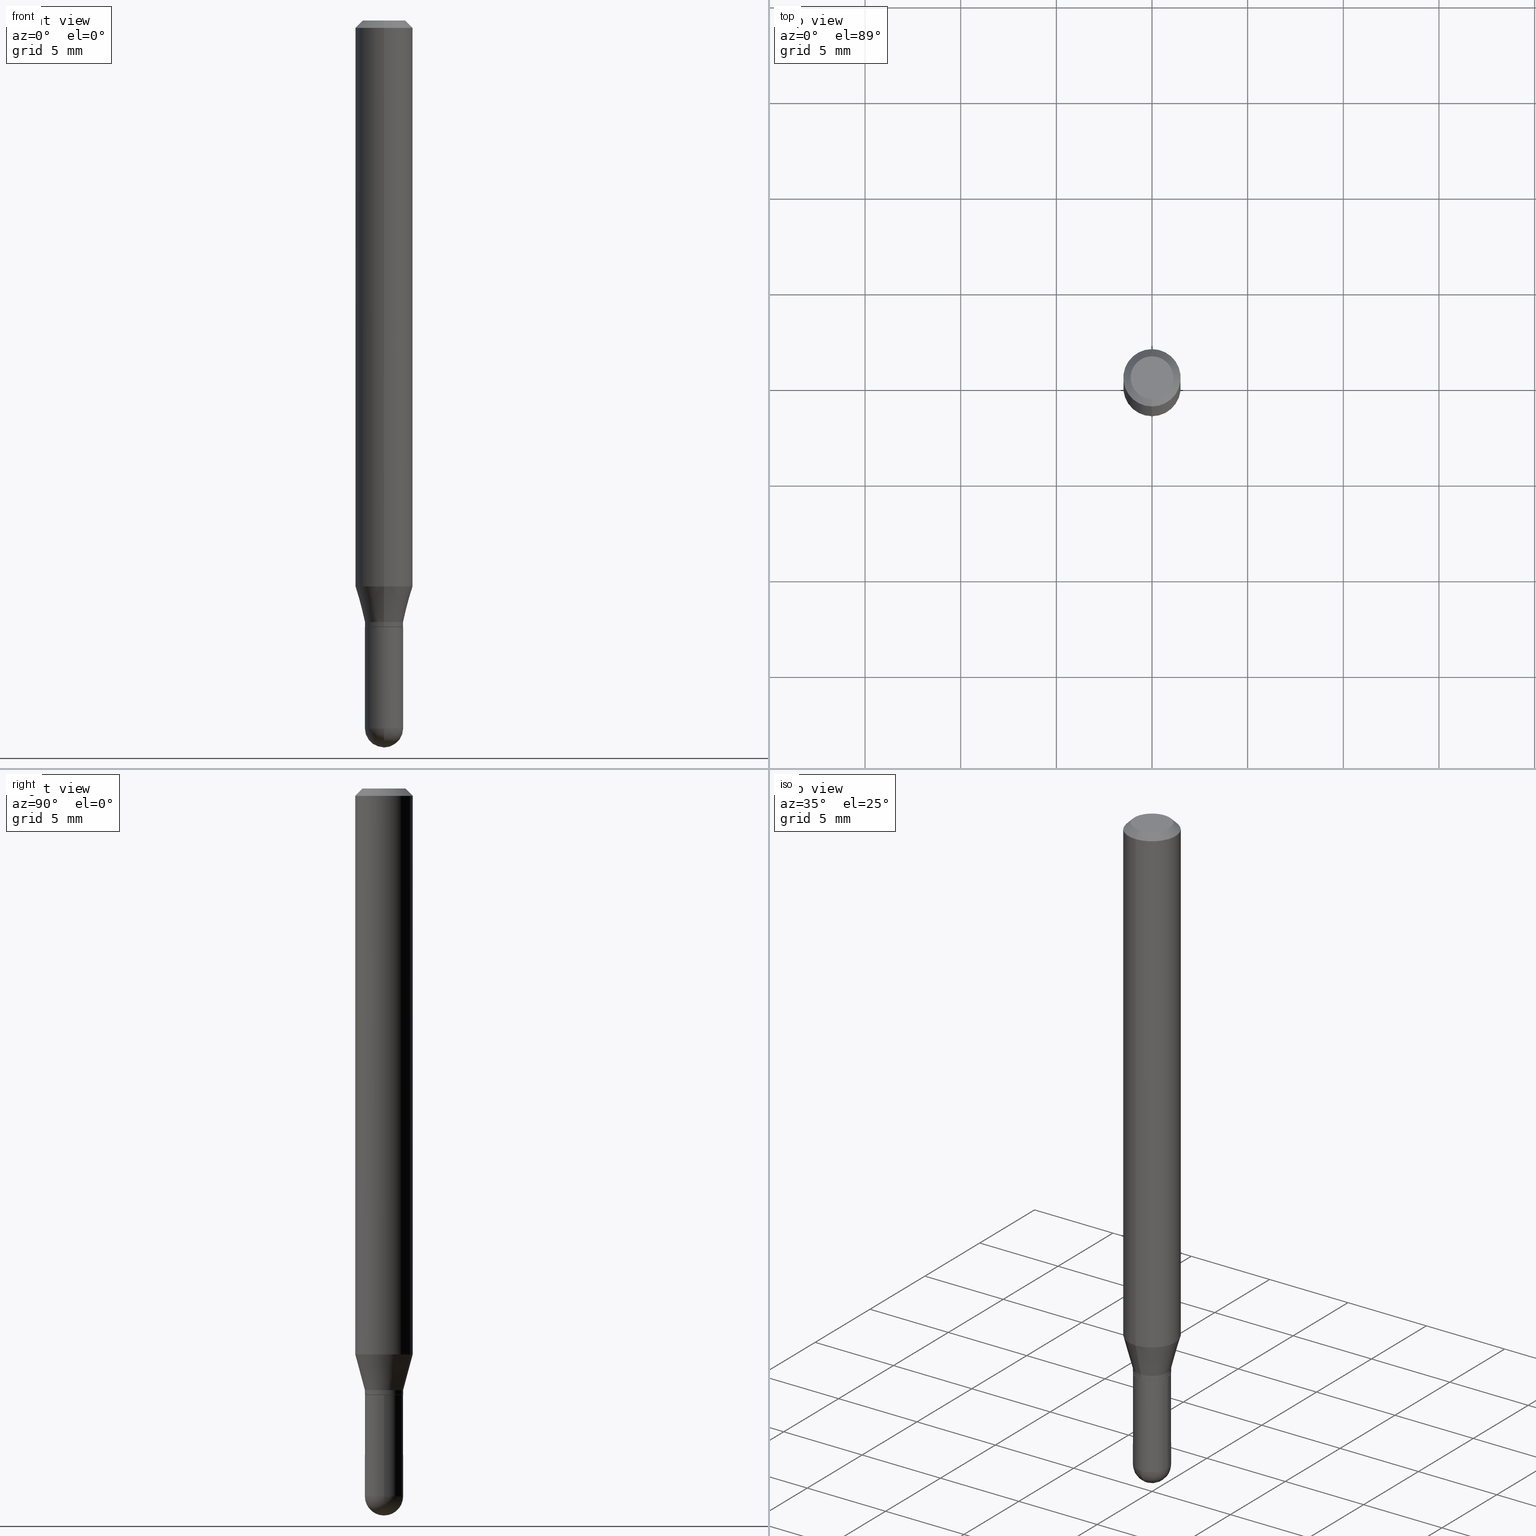
[diagram: canonical four-view strip — front | top / right | iso, engineering-drawing reading convention]
A machine part, canonical four-view strip (front | top / right | iso — engineering-drawing reading convention). The complete STEP part file that produces these views, byte-faithful:
ISO-10303-21;
HEADER;
FILE_DESCRIPTION (( 'STEP AP203' ),
    '1' );
FILE_NAME ('48865.STEP',
    '2024-03-08T13:31:53',
    ( '' ),
    ( '' ),
    'SwSTEP 2.0',
    'SolidWorks 2023',
    '' );
FILE_SCHEMA (( 'CONFIG_CONTROL_DESIGN' ));
ENDSEC;

DATA;
#1 =( GEOMETRIC_REPRESENTATION_CONTEXT ( 3 ) GLOBAL_UNCERTAINTY_ASSIGNED_CONTEXT ( ( #200 ) ) GLOBAL_UNIT_ASSIGNED_CONTEXT ( ( #266, #496, #423 ) ) REPRESENTATION_CONTEXT ( 'NONE', 'WORKASPACE' ) );
#2 = EDGE_CURVE ( 'NONE', #325, #75, #278, .T. ) ;
#3 = ORIENTED_EDGE ( 'NONE', *, *, #48, .F. ) ;
#4 = DIRECTION ( 'NONE',  ( -6.982962677686265133E-15, -1.000000000000000000, 0.000000000000000000 ) ) ;
#5 = LINE ( 'NONE', #410, #94 ) ;
#6 = AXIS2_PLACEMENT_3D ( 'NONE', #359, #203, #4 ) ;
#7 = AXIS2_PLACEMENT_3D ( 'NONE', #338, #336, #341 ) ;
#8 = AXIS2_PLACEMENT_3D ( 'NONE', #90, #417, #383 ) ;
#9 = DIRECTION ( 'NONE',  ( 1.000000000000000000, -6.982962677686266711E-15, 4.883557194083112901E-29 ) ) ;
#10 = DIRECTION ( 'NONE',  ( -2.445991447333329279E-29, 3.490732886972046653E-15, 1.000000000000000000 ) ) ;
#11 = CARTESIAN_POINT ( 'NONE',  ( 0.000000000000000000, 0.000000000000000000, 0.000000000000000000 ) ) ;
#12 = AXIS2_PLACEMENT_3D ( 'NONE', #343, #487, #350 ) ;
#13 = CARTESIAN_POINT ( 'NONE',  ( 0.000000000000000000, 0.000000000000000000, 0.000000000000000000 ) ) ;
#14 = CC_DESIGN_SECURITY_CLASSIFICATION ( #190, ( #31 ) ) ;
#15 = DIRECTION ( 'NONE',  ( 1.000000000000000000, -6.982962677686266711E-15, 4.876176775795936353E-29 ) ) ;
#16 = EDGE_CURVE ( 'NONE', #344, #28, #250, .T. ) ;
#17 = ORIENTED_EDGE ( 'NONE', *, *, #62, .T. ) ;
#18 = FACE_OUTER_BOUND ( 'NONE', #112, .T. ) ;
#19 = CARTESIAN_POINT ( 'NONE',  ( -4.123439461173737369E-16, -0.05905000000000006771, -0.01500000000000025618 ) ) ;
#20 = ORIENTED_EDGE ( 'NONE', *, *, #29, .F. ) ;
#21 = DIRECTION ( 'NONE',  ( 2.445991447333329279E-29, -3.490732886972046653E-15, -1.000000000000000000 ) ) ;
#22 = CONICAL_SURFACE ( 'NONE', #134, 0.03934999999999992670, 0.2617993877991502960 ) ;
#23 = EDGE_LOOP ( 'NONE', ( #436, #416 ) ) ;
#24 = AXIS2_PLACEMENT_3D ( 'NONE', #346, #449, #185 ) ;
#25 = FACE_OUTER_BOUND ( 'NONE', #173, .T. ) ;
#26 = ORIENTED_EDGE ( 'NONE', *, *, #239, .T. ) ;
#27 = CARTESIAN_POINT ( 'NONE',  ( 0.03935000000000000303, -2.747795813669546211E-16, 1.918775561275701074E-30 ) ) ;
#28 = VERTEX_POINT ( 'NONE', #288 ) ;
#29 = EDGE_CURVE ( 'NONE', #430, #311, #178, .T. ) ;
#30 = CARTESIAN_POINT ( 'NONE',  ( 4.195754854663679906E-16, 0.05904999999999997057, -0.01500000000000067078 ) ) ;
#31 = PRODUCT_DEFINITION_FORMATION_WITH_SPECIFIED_SOURCE ( 'ANY', '', #271, .NOT_KNOWN. ) ;
#32 = COORDINATED_UNIVERSAL_TIME_OFFSET ( 5, 0, .BEHIND. ) ;
#33 = VERTEX_POINT ( 'NONE', #30 ) ;
#34 = EDGE_CURVE ( 'NONE', #434, #473, #167, .T. ) ;
#35 = CARTESIAN_POINT ( 'NONE',  ( -0.03935000000000000303, 2.795985665215994447E-16, -1.935600958015305291E-30 ) ) ;
#36 = ORIENTED_EDGE ( 'NONE', *, *, #480, .F. ) ;
#37 = ADVANCED_FACE ( 'NONE', ( #319 ), #457, .T. ) ;
#38 = COORDINATED_UNIVERSAL_TIME_OFFSET ( 5, 0, .BEHIND. ) ;
#39 = DIRECTION ( 'NONE',  ( 2.438088387897960049E-29, -3.491481338843145188E-15, -1.000000000000000000 ) ) ;
#40 = VERTEX_POINT ( 'NONE', #478 ) ;
#41 = AXIS2_PLACEMENT_3D ( 'NONE', #411, #342, #260 ) ;
#42 = ORIENTED_EDGE ( 'NONE', *, *, #365, .T. ) ;
#43 = DIRECTION ( 'NONE',  ( -6.982962677686265133E-15, -1.000000000000000000, 6.942434545525459712E-15 ) ) ;
#44 = CARTESIAN_POINT ( 'NONE',  ( -2.747795813669238062E-16, -0.03935000000000424270, -1.238099999999999534 ) ) ;
#45 = ADVANCED_FACE ( 'NONE', ( #409 ), #52, .F. ) ;
#46 = AXIS2_PLACEMENT_3D ( 'NONE', #131, #500, #96 ) ;
#47 = DIRECTION ( 'NONE',  ( -6.982962677686265133E-15, -1.000000000000000000, 3.490732886972045864E-15 ) ) ;
#48 = EDGE_CURVE ( 'NONE', #222, #231, #5, .T. ) ;
#49 = DATE_AND_TIME ( #252, #259 ) ;
#50 = CYLINDRICAL_SURFACE ( 'NONE', #73, 0.05905000000000000526 ) ;
#51 = CC_DESIGN_PERSON_AND_ORGANIZATION_ASSIGNMENT ( #110, #275, ( #271 ) ) ;
#52 = PLANE ( 'NONE',  #504 ) ;
#53 = CARTESIAN_POINT ( 'NONE',  ( 3.668987171000107582E-31, -5.236099330458231942E-17, -0.01500000000000046262 ) ) ;
#54 = CONICAL_SURFACE ( 'NONE', #244, 0.05905000000000001914, 0.7853981633974485010 ) ;
#55 = DIRECTION ( 'NONE',  ( 6.982962677686265922E-15, 1.000000000000000000, -3.505890868245044514E-15 ) ) ;
#56 = CIRCLE ( 'NONE', #226, 0.03935000000000000303 ) ;
#57 = CARTESIAN_POINT ( 'NONE',  ( -4.123439461173452886E-16, -0.05905000000000402982, -1.164578599090892785 ) ) ;
#58 = ADVANCED_FACE ( 'NONE', ( #123 ), #50, .T. ) ;
#59 = CARTESIAN_POINT ( 'NONE',  ( 4.195754854663677934E-16, 0.05904999999999596683, -1.164578599090893229 ) ) ;
#60 = ORIENTED_EDGE ( 'NONE', *, *, #2, .T. ) ;
#61 = DIRECTION ( 'NONE',  ( 6.982962677686265922E-15, 1.000000000000000000, -3.505890868245044514E-15 ) ) ;
#62 = EDGE_CURVE ( 'NONE', #75, #28, #293, .T. ) ;
#63 = CARTESIAN_POINT ( 'NONE',  ( 0.03935000000000000303, -4.996746231051896791E-15, -1.456749999999999989 ) ) ;
#64 = AXIS2_PLACEMENT_3D ( 'NONE', #285, #469, #192 ) ;
#65 = ORIENTED_EDGE ( 'NONE', *, *, #332, .T. ) ;
#66 = APPROVAL ( #211, 'UNSPECIFIED' ) ;
#67 = ADVANCED_FACE ( 'NONE', ( #442 ), #225, .T. ) ;
#68 = LINE ( 'NONE', #232, #431 ) ;
#69 = ORIENTED_EDGE ( 'NONE', *, *, #255, .T. ) ;
#70 = COORDINATED_UNIVERSAL_TIME_OFFSET ( 5, 0, .BEHIND. ) ;
#71 = SPHERICAL_SURFACE ( 'NONE', #505, 0.03934999999999998221 ) ;
#72 = DIRECTION ( 'NONE',  ( -2.445991447333329279E-29, 3.490732886972046653E-15, 1.000000000000000000 ) ) ;
#73 = AXIS2_PLACEMENT_3D ( 'NONE', #13, #89, #300 ) ;
#74 = CARTESIAN_POINT ( 'NONE',  ( 2.747795813669850908E-16, 0.03934999999999564541, -1.248100000000000209 ) ) ;
#75 = VERTEX_POINT ( 'NONE', #129 ) ;
#76 = ORIENTED_EDGE ( 'NONE', *, *, #332, .F. ) ;
#77 = EDGE_CURVE ( 'NONE', #473, #398, #339, .T. ) ;
#78 = DIRECTION ( 'NONE',  ( -2.445991447333329279E-29, 3.490732886972046653E-15, 1.000000000000000000 ) ) ;
#79 = ORIENTED_EDGE ( 'NONE', *, *, #143, .T. ) ;
#80 = CIRCLE ( 'NONE', #289, 0.05904999999999999832 ) ;
#81 = ORGANIZATION ( 'UNSPECIFIED', 'UNSPECIFIED', '' ) ;
#82 = ORIENTED_EDGE ( 'NONE', *, *, #453, .F. ) ;
#83 = CARTESIAN_POINT ( 'NONE',  ( -4.123439461173740327E-16, -0.05905000000000000526, 2.061277769756993909E-16 ) ) ;
#84 = PERSON_AND_ORGANIZATION ( #448, #81 ) ;
#85 = CARTESIAN_POINT ( 'NONE',  ( 3.559071604062276693E-29, -5.091034425514398258E-15, -1.456749999999999989 ) ) ;
#86 = CIRCLE ( 'NONE', #467, 0.03934999999999998221 ) ;
#87 = APPROVAL_DATE_TIME ( #404, #66 ) ;
#88 = DIRECTION ( 'NONE',  ( -6.982962677686265133E-15, -1.000000000000000000, 0.000000000000000000 ) ) ;
#89 = DIRECTION ( 'NONE',  ( -2.445991447333329279E-29, 3.490732886972046653E-15, 1.000000000000000000 ) ) ;
#90 = CARTESIAN_POINT ( 'NONE',  ( 3.562436683410197746E-29, -5.086215440359752990E-15, -1.456749999999999989 ) ) ;
#91 = APPROVAL_ROLE ( '' ) ;
#92 = APPROVAL ( #234, 'UNSPECIFIED' ) ;
#93 = APPLICATION_PROTOCOL_DEFINITION ( 'international standard', 'config_control_design', 1994, #149 ) ;
#94 = VECTOR ( 'NONE', #475, 39.37007874015748143 ) ;
#95 = VECTOR ( 'NONE', #497, 39.37007874015748143 ) ;
#96 = DIRECTION ( 'NONE',  ( 1.000000000000000000, -6.982962677686269077E-15, 0.000000000000000000 ) ) ;
#97 = ORIENTED_EDGE ( 'NONE', *, *, #261, .T. ) ;
#98 = LINE ( 'NONE', #263, #114 ) ;
#99 = ADVANCED_FACE ( 'NONE', ( #481 ), #253, .F. ) ;
#100 = CYLINDRICAL_SURFACE ( 'NONE', #331, 0.03935000000000000303 ) ;
#101 = EDGE_CURVE ( 'NONE', #102, #470, #421, .T. ) ;
#102 = VERTEX_POINT ( 'NONE', #44 ) ;
#103 = CARTESIAN_POINT ( 'NONE',  ( 3.052841925416728351E-29, -4.356783716229811953E-15, -1.248099999999999987 ) ) ;
#104 = CIRCLE ( 'NONE', #159, 0.04405000000000000582 ) ;
#105 = EDGE_LOOP ( 'NONE', ( #141, #193 ) ) ;
#106 = CARTESIAN_POINT ( 'NONE',  ( 3.028382010943394817E-29, -4.321876387360090974E-15, -1.238099999999999756 ) ) ;
#107 = VERTEX_POINT ( 'NONE', #213 ) ;
#108 = DIRECTION ( 'NONE',  ( -6.982962677686265133E-15, -1.000000000000000000, 3.490732886972045864E-15 ) ) ;
#109 = CARTESIAN_POINT ( 'NONE',  ( 2.848549293123754219E-29, -4.065232815310413885E-15, -1.164578599090893007 ) ) ;
#110 = PERSON_AND_ORGANIZATION ( #448, #81 ) ;
#111 = FACE_OUTER_BOUND ( 'NONE', #281, .T. ) ;
#112 = EDGE_LOOP ( 'NONE', ( #60, #17, #347, #418 ) ) ;
#113 = AXIS2_PLACEMENT_3D ( 'NONE', #11, #204, #445 ) ;
#114 = VECTOR ( 'NONE', #224, 39.37007874015748143 ) ;
#115 = APPROVAL_ROLE ( '' ) ;
#116 = DIRECTION ( 'NONE',  ( -6.982962677686265133E-15, -1.000000000000000000, 0.000000000000000000 ) ) ;
#117 = ORIENTED_EDGE ( 'NONE', *, *, #156, .F. ) ;
#118 = EDGE_LOOP ( 'NONE', ( #195, #501, #379, #186, #348 ) ) ;
#119 = DIRECTION ( 'NONE',  ( -6.982962677686265133E-15, -1.000000000000000000, 6.942434545525459712E-15 ) ) ;
#120 = LOCAL_TIME ( 8, 31, 53.00000000000000000, #32 ) ;
#121 = PERSON_AND_ORGANIZATION ( #448, #81 ) ;
#122 = CARTESIAN_POINT ( 'NONE',  ( -2.712881000280808977E-16, -0.03885000000000435327, -1.248099999999999987 ) ) ;
#123 = FACE_OUTER_BOUND ( 'NONE', #464, .T. ) ;
#124 = MANIFOLD_SOLID_BREP ( 'Body-Move/Copy2[1]', #146 ) ;
#125 = ADVANCED_FACE ( 'NONE', ( #366 ), #371, .T. ) ;
#126 = CYLINDRICAL_SURFACE ( 'NONE', #140, 0.05905000000000000526 ) ;
#127 = DIRECTION ( 'NONE',  ( -2.445468806185136597E-29, 3.491481338843145583E-15, 1.000000000000000000 ) ) ;
#128 = MANIFOLD_SOLID_BREP ( 'Body-Move/Copy2[2]', #491 ) ;
#129 = CARTESIAN_POINT ( 'NONE',  ( 2.778222096822293666E-16, 0.03884999999999564496, -1.248099999999999987 ) ) ;
#130 = LENGTH_MEASURE_WITH_UNIT ( LENGTH_MEASURE( 0.02539999999999999897 ), #229 );
#131 = CARTESIAN_POINT ( 'NONE',  ( 3.052189616999668885E-29, -4.357717859010129969E-15, -1.248099999999999987 ) ) ;
#132 = VERTEX_POINT ( 'NONE', #364 ) ;
#133 = CARTESIAN_POINT ( 'NONE',  ( -2.747795813669540294E-16, -0.03934999999999992670, 1.373603391023497678E-16 ) ) ;
#134 = AXIS2_PLACEMENT_3D ( 'NONE', #135, #394, #321 ) ;
#135 = CARTESIAN_POINT ( 'NONE',  ( 3.028382010943394817E-29, -4.321876387360090974E-15, -1.238099999999999756 ) ) ;
#136 = ORIENTED_EDGE ( 'NONE', *, *, #377, .F. ) ;
#137 = DIRECTION ( 'NONE',  ( -2.445991447333329279E-29, 3.490732886972046653E-15, 1.000000000000000000 ) ) ;
#138 = ADVANCED_FACE ( 'NONE', ( #254 ), #166, .T. ) ;
#139 = ORIENTED_EDGE ( 'NONE', *, *, #29, .T. ) ;
#140 = AXIS2_PLACEMENT_3D ( 'NONE', #296, #483, #291 ) ;
#141 = ORIENTED_EDGE ( 'NONE', *, *, #462, .T. ) ;
#142 = VECTOR ( 'NONE', #375, 39.37007874015748143 ) ;
#143 = EDGE_CURVE ( 'NONE', #512, #222, #104, .T. ) ;
#144 = DIRECTION ( 'NONE',  ( -2.445991447333329279E-29, 3.490732886972046653E-15, 1.000000000000000000 ) ) ;
#145 = ORIENTED_EDGE ( 'NONE', *, *, #158, .T. ) ;
#146 = CLOSED_SHELL ( 'NONE', ( #373, #138, #370, #337, #437 ) ) ;
#147 = ORIENTED_EDGE ( 'NONE', *, *, #495, .F. ) ;
#148 = VECTOR ( 'NONE', #157, 39.37007874015748143 ) ;
#149 = APPLICATION_CONTEXT ( 'configuration controlled 3d designs of mechanical parts and assemblies' ) ;
#150 = DATE_AND_TIME ( #507, #305 ) ;
#151 = DIRECTION ( 'NONE',  ( -2.445991447333329279E-29, 3.490732886972046653E-15, 1.000000000000000000 ) ) ;
#152 = ORIENTED_EDGE ( 'NONE', *, *, #77, .F. ) ;
#153 = CARTESIAN_POINT ( 'NONE',  ( 3.559071604062276693E-29, -5.091034425514398258E-15, -1.456749999999999989 ) ) ;
#154 = CC_DESIGN_PERSON_AND_ORGANIZATION_ASSIGNMENT ( #84, #335, ( #190 ) ) ;
#155 = CARTESIAN_POINT ( 'NONE',  ( 3.051618929693061478E-29, -4.355038349786326141E-15, -1.247600000000000042 ) ) ;
#156 = EDGE_CURVE ( 'NONE', #231, #33, #168, .T. ) ;
#157 = DIRECTION ( 'NONE',  ( -4.937700262164674260E-15, -0.7071067811865632269, 0.7071067811865319186 ) ) ;
#158 = EDGE_CURVE ( 'NONE', #325, #344, #485, .T. ) ;
#159 = AXIS2_PLACEMENT_3D ( 'NONE', #249, #10, #47 ) ;
#160 = LOCAL_TIME ( 8, 31, 53.00000000000000000, #70 ) ;
#161 = CALENDAR_DATE ( 2024, 8, 3 ) ;
#162 = DIRECTION ( 'NONE',  ( 6.982962677686265922E-15, 1.000000000000000000, -3.490732886972046653E-15 ) ) ;
#163 = PRODUCT_DEFINITION ( 'UNKNOWN', '', #31, #230 ) ;
#164 = DIRECTION ( 'NONE',  ( -1.807323732225330928E-15, -0.2588190451025182970, 0.9659258262890689783 ) ) ;
#165 = CARTESIAN_POINT ( 'NONE',  ( 3.075995059520800222E-16, 0.04405000000000000582, -3.855612639484373857E-16 ) ) ;
#166 = SPHERICAL_SURFACE ( 'NONE', #258, 0.03934999999999998221 ) ;
#167 = CIRCLE ( 'NONE', #242, 0.03935000000000000303 ) ;
#168 = CIRCLE ( 'NONE', #7, 0.05905000000000001914 ) ;
#169 = APPLICATION_CONTEXT ( 'configuration controlled 3d designs of mechanical parts and assemblies' ) ;
#170 = DIRECTION ( 'NONE',  ( -6.982962677686265133E-15, -1.000000000000000000, 3.490732886972046258E-15 ) ) ;
#171 = DIRECTION ( 'NONE',  ( -6.982962677686266711E-15, -1.000000000000000000, 6.942434545525449456E-15 ) ) ;
#172 = CARTESIAN_POINT ( 'NONE',  ( 3.051618929693061478E-29, -4.355038349786326141E-15, -1.247600000000000042 ) ) ;
#173 = EDGE_LOOP ( 'NONE', ( #3, #425, #357, #65 ) ) ;
#174 = DIRECTION ( 'NONE',  ( -6.982962677686265133E-15, -1.000000000000000000, 0.000000000000000000 ) ) ;
#175 = FACE_OUTER_BOUND ( 'NONE', #420, .T. ) ;
#176 = ORIENTED_EDGE ( 'NONE', *, *, #453, .T. ) ;
#177 = FACE_OUTER_BOUND ( 'NONE', #233, .T. ) ;
#178 = CIRCLE ( 'NONE', #380, 0.05904999999999999832 ) ;
#179 = CIRCLE ( 'NONE', #330, 0.04405000000000000582 ) ;
#180 = DIRECTION ( 'NONE',  ( -2.445991447333329279E-29, 3.490732886972046653E-15, 1.000000000000000000 ) ) ;
#181 = APPROVAL_PERSON_ORGANIZATION ( #257, #92, #374 ) ;
#182 = ORIENTED_EDGE ( 'NONE', *, *, #422, .F. ) ;
#183 = DIRECTION ( 'NONE',  ( 2.445991447333329279E-29, -3.490732886972046653E-15, -1.000000000000000000 ) ) ;
#184 = ORIENTED_EDGE ( 'NONE', *, *, #219, .F. ) ;
#185 = DIRECTION ( 'NONE',  ( 7.105427357601000281E-15, 1.000000000000000000, 0.000000000000000000 ) ) ;
#186 = ORIENTED_EDGE ( 'NONE', *, *, #255, .F. ) ;
#187 = APPLICATION_PROTOCOL_DEFINITION ( 'international standard', 'config_control_design', 1994, #169 ) ;
#188 = AXIS2_PLACEMENT_3D ( 'NONE', #201, #361, #463 ) ;
#189 = CARTESIAN_POINT ( 'NONE',  ( 3.562436683410197746E-29, -5.086215440359752990E-15, -1.456749999999999989 ) ) ;
#190 = SECURITY_CLASSIFICATION ( '', '', #477 ) ;
#191 = CALENDAR_DATE ( 2024, 8, 3 ) ;
#192 = DIRECTION ( 'NONE',  ( 1.000000000000000000, -6.982962677686266711E-15, 4.876176775795936353E-29 ) ) ;
#193 = ORIENTED_EDGE ( 'NONE', *, *, #304, .T. ) ;
#194 = FACE_OUTER_BOUND ( 'NONE', #118, .T. ) ;
#195 = ORIENTED_EDGE ( 'NONE', *, *, #495, .T. ) ;
#196 = PRODUCT_DEFINITION_SHAPE ( 'NONE', 'NONE',  #163 ) ;
#197 = EDGE_LOOP ( 'NONE', ( #36, #26, #176, #328 ) ) ;
#198 = CIRCLE ( 'NONE', #188, 0.05905000000000001914 ) ;
#199 = CC_DESIGN_DATE_AND_TIME_ASSIGNMENT ( #205, #307, ( #163 ) ) ;
#200 = UNCERTAINTY_MEASURE_WITH_UNIT (LENGTH_MEASURE( 1.000000000000000082E-05 ), #266, 'distance_accuracy_value', 'NONE');
#201 = CARTESIAN_POINT ( 'NONE',  ( 3.668987171000107582E-31, -5.236099330458231942E-17, -0.01500000000000046262 ) ) ;
#202 = ADVANCED_FACE ( 'NONE', ( #333 ), #126, .T. ) ;
#203 = DIRECTION ( 'NONE',  ( -2.445991447333329279E-29, 3.490732886972046653E-15, 1.000000000000000000 ) ) ;
#204 = DIRECTION ( 'NONE',  ( -2.445991447333329279E-29, 3.490732886972046653E-15, 1.000000000000000000 ) ) ;
#205 = DATE_AND_TIME ( #272, #160 ) ;
#206 = DIRECTION ( 'NONE',  ( -2.445991447333328999E-29, 3.490732886972046653E-15, 1.000000000000000000 ) ) ;
#207 = PRODUCT_RELATED_PRODUCT_CATEGORY ( 'detail', '', ( #271 ) ) ;
#208 = AXIS2_PLACEMENT_3D ( 'NONE', #447, #210, #88 ) ;
#209 = AXIS2_PLACEMENT_3D ( 'NONE', #103, #137, #174 ) ;
#210 = DIRECTION ( 'NONE',  ( -2.445991447333329279E-29, 3.490732886972046653E-15, 1.000000000000000000 ) ) ;
#211 = APPROVAL_STATUS ( 'not_yet_approved' ) ;
#212 = DATE_TIME_ROLE ( 'classification_date' ) ;
#213 = CARTESIAN_POINT ( 'NONE',  ( -0.03935000000000000303, -4.442368083163342479E-15, -1.248099999999999987 ) ) ;
#214 = CARTESIAN_POINT ( 'NONE',  ( 3.052841925416728351E-29, -4.356783716229811953E-15, -1.248099999999999987 ) ) ;
#215 = CIRCLE ( 'NONE', #235, 0.03934999999999992670 ) ;
#216 = APPROVAL_PERSON_ORGANIZATION ( #317, #66, #91 ) ;
#217 = CARTESIAN_POINT ( 'NONE',  ( 3.599717260347272986E-16, 0.04405000000000000582, -6.173557442257560111E-16 ) ) ;
#218 = CARTESIAN_POINT ( 'NONE',  ( 0.000000000000000000, 0.000000000000000000, 0.000000000000000000 ) ) ;
#219 = EDGE_CURVE ( 'NONE', #430, #231, #441, .T. ) ;
#220 = ORIENTED_EDGE ( 'NONE', *, *, #261, .F. ) ;
#221 = CARTESIAN_POINT ( 'NONE',  ( 0.000000000000000000, 0.000000000000000000, 0.000000000000000000 ) ) ;
#222 = VERTEX_POINT ( 'NONE', #378 ) ;
#223 = EDGE_CURVE ( 'NONE', #512, #33, #265, .T. ) ;
#224 = DIRECTION ( 'NONE',  ( 1.839019923739601104E-15, 0.2588190451025250693, 0.9659258262890670910 ) ) ;
#225 = CONICAL_SURFACE ( 'NONE', #208, 0.03885000000000000259, 0.7853981633974739252 ) ;
#226 = AXIS2_PLACEMENT_3D ( 'NONE', #349, #452, #486 ) ;
#227 = CARTESIAN_POINT ( 'NONE',  ( 3.653618261911701929E-29, -5.230833708775198744E-15, -1.496099999999999985 ) ) ;
#228 = ORIENTED_EDGE ( 'NONE', *, *, #48, .T. ) ;
#229 =( LENGTH_UNIT ( ) NAMED_UNIT ( * ) SI_UNIT ( $, .METRE. ) );
#230 = DESIGN_CONTEXT ( 'detailed design', #169, 'design' ) ;
#231 = VERTEX_POINT ( 'NONE', #19 ) ;
#232 = CARTESIAN_POINT ( 'NONE',  ( -2.747795813669238062E-16, -0.03935000000000424270, -1.238099999999999534 ) ) ;
#233 = EDGE_LOOP ( 'NONE', ( #429, #503, #391, #82 ) ) ;
#234 = APPROVAL_STATUS ( 'not_yet_approved' ) ;
#235 = AXIS2_PLACEMENT_3D ( 'NONE', #172, #180, #269 ) ;
#236 = DIRECTION ( 'NONE',  ( -6.982962677686265133E-15, -1.000000000000000000, 6.942434545525459712E-15 ) ) ;
#237 = PERSON_AND_ORGANIZATION ( #448, #81 ) ;
#238 = ORIENTED_EDGE ( 'NONE', *, *, #34, .F. ) ;
#239 = EDGE_CURVE ( 'NONE', #28, #344, #215, .T. ) ;
#240 = VERTEX_POINT ( 'NONE', #227 ) ;
#241 = PLANE ( 'NONE',  #367 ) ;
#242 = AXIS2_PLACEMENT_3D ( 'NONE', #189, #355, #509 ) ;
#243 = EDGE_LOOP ( 'NONE', ( #136, #376, #351, #69, #270 ) ) ;
#244 = AXIS2_PLACEMENT_3D ( 'NONE', #413, #183, #55 ) ;
#245 = CC_DESIGN_APPROVAL ( #390, ( #163 ) ) ;
#246 = DIRECTION ( 'NONE',  ( 2.445991447333328999E-29, -3.490732886972046653E-15, -1.000000000000000000 ) ) ;
#247 = PERSON_AND_ORGANIZATION_ROLE ( 'design_supplier' ) ;
#248 = DIRECTION ( 'NONE',  ( -2.445991447333329279E-29, 3.490732886972046653E-15, 1.000000000000000000 ) ) ;
#249 = CARTESIAN_POINT ( 'NONE',  ( 1.133934632594791413E-44, -1.618265230645259765E-30, -4.635889605546374482E-16 ) ) ;
#250 = CIRCLE ( 'NONE', #405, 0.03934999999999992670 ) ;
#251 = LOCAL_TIME ( 8, 31, 53.00000000000000000, #294 ) ;
#252 = CALENDAR_DATE ( 2024, 8, 3 ) ;
#253 = PLANE ( 'NONE',  #360 ) ;
#254 = FACE_OUTER_BOUND ( 'NONE', #262, .T. ) ;
#255 = EDGE_CURVE ( 'NONE', #473, #40, #424, .T. ) ;
#256 = FACE_OUTER_BOUND ( 'NONE', #243, .T. ) ;
#257 = PERSON_AND_ORGANIZATION ( #448, #81 ) ;
#258 = AXIS2_PLACEMENT_3D ( 'NONE', #85, #9, #171 ) ;
#259 = LOCAL_TIME ( 8, 31, 53.00000000000000000, #443 ) ;
#260 = DIRECTION ( 'NONE',  ( 1.000000000000000000, 0.000000000000000000, 0.000000000000000000 ) ) ;
#261 = EDGE_CURVE ( 'NONE', #240, #398, #444, .T. ) ;
#262 = EDGE_LOOP ( 'NONE', ( #182, #97, #152, #238 ) ) ;
#263 = CARTESIAN_POINT ( 'NONE',  ( 2.795985665216290763E-16, 0.03934999999999560377, -1.238100000000000200 ) ) ;
#264 = CYLINDRICAL_SURFACE ( 'NONE', #354, 0.03934999999999992670 ) ;
#265 = LINE ( 'NONE', #456, #280 ) ;
#266 =( CONVERSION_BASED_UNIT ( 'INCH', #130 ) LENGTH_UNIT ( ) NAMED_UNIT ( #316 ) );
#267 = AXIS2_PLACEMENT_3D ( 'NONE', #53, #21, #61 ) ;
#268 = CONICAL_SURFACE ( 'NONE', #209, 0.03885000000000000259, 0.7853981633974739252 ) ;
#269 = DIRECTION ( 'NONE',  ( -6.982962677686265133E-15, -1.000000000000000000, 6.942434545525459712E-15 ) ) ;
#270 = ORIENTED_EDGE ( 'NONE', *, *, #304, .F. ) ;
#271 = PRODUCT ( '48865', '48865', '', ( #277 ) ) ;
#272 = CALENDAR_DATE ( 2024, 8, 3 ) ;
#273 = DIRECTION ( 'NONE',  ( -2.445991447333329279E-29, 3.490732886972046653E-15, 1.000000000000000000 ) ) ;
#274 = ORIENTED_EDGE ( 'NONE', *, *, #440, .F. ) ;
#275 = PERSON_AND_ORGANIZATION_ROLE ( 'design_owner' ) ;
#276 = CARTESIAN_POINT ( 'NONE',  ( 3.028382010943394817E-29, -4.321876387360090974E-15, -1.238099999999999756 ) ) ;
#277 = MECHANICAL_CONTEXT ( 'NONE', #149, 'mechanical' ) ;
#278 = CIRCLE ( 'NONE', #6, 0.03885000000000000259 ) ;
#279 = CARTESIAN_POINT ( 'NONE',  ( -2.747795813669244472E-16, -0.03935000000000441617, -1.247599999999999820 ) ) ;
#280 = VECTOR ( 'NONE', #314, 39.37007874015748143 ) ;
#281 = EDGE_LOOP ( 'NONE', ( #220, #384, #488, #147 ) ) ;
#282 = CARTESIAN_POINT ( 'NONE',  ( 2.795985665216349434E-16, 0.03934999999999490294, -1.456750000000000211 ) ) ;
#283 = CC_DESIGN_PERSON_AND_ORGANIZATION_ASSIGNMENT ( #400, #247, ( #31 ) ) ;
#284 = ORIENTED_EDGE ( 'NONE', *, *, #101, .T. ) ;
#285 = CARTESIAN_POINT ( 'NONE',  ( 0.000000000000000000, 0.000000000000000000, 0.000000000000000000 ) ) ;
#286 = ORIENTED_EDGE ( 'NONE', *, *, #239, .F. ) ;
#287 = VECTOR ( 'NONE', #329, 39.37007874015748143 ) ;
#288 = CARTESIAN_POINT ( 'NONE',  ( 2.795985665216283860E-16, 0.03934999999999543724, -1.247600000000000264 ) ) ;
#289 = AXIS2_PLACEMENT_3D ( 'NONE', #389, #151, #508 ) ;
#290 = VECTOR ( 'NONE', #414, 39.37007874015748143 ) ;
#291 = DIRECTION ( 'NONE',  ( -6.982962677686265922E-15, -1.000000000000000000, 3.490732886972047047E-15 ) ) ;
#292 = ADVANCED_FACE ( 'NONE', ( #25 ), #54, .T. ) ;
#293 = LINE ( 'NONE', #403, #287 ) ;
#294 = COORDINATED_UNIVERSAL_TIME_OFFSET ( 5, 0, .BEHIND. ) ;
#295 = EDGE_CURVE ( 'NONE', #132, #434, #303, .T. ) ;
#296 = CARTESIAN_POINT ( 'NONE',  ( 0.000000000000000000, 0.000000000000000000, 0.000000000000000000 ) ) ;
#297 = CIRCLE ( 'NONE', #46, 0.03935000000000000303 ) ;
#298 = APPROVAL_PERSON_ORGANIZATION ( #237, #390, #115 ) ;
#299 = SHAPE_DEFINITION_REPRESENTATION ( #196, #465 ) ;
#300 = DIRECTION ( 'NONE',  ( -6.982962677686265922E-15, -1.000000000000000000, 3.490732886972047047E-15 ) ) ;
#301 = DIRECTION ( 'NONE',  ( 1.000000000000000000, -6.982962677686269077E-15, 0.000000000000000000 ) ) ;
#302 = ORIENTED_EDGE ( 'NONE', *, *, #399, .T. ) ;
#303 = CIRCLE ( 'NONE', #12, 0.03935000000000000303 ) ;
#304 = EDGE_CURVE ( 'NONE', #107, #40, #297, .T. ) ;
#305 = LOCAL_TIME ( 8, 31, 53.00000000000000000, #38 ) ;
#306 = CARTESIAN_POINT ( 'NONE',  ( 3.495870259939983362E-16, 0.03934999999999560377, -1.238100000000000200 ) ) ;
#307 = DATE_TIME_ROLE ( 'creation_date' ) ;
#308 = LINE ( 'NONE', #499, #142 ) ;
#309 = ORIENTED_EDGE ( 'NONE', *, *, #156, .T. ) ;
#310 = DIRECTION ( 'NONE',  ( -2.445468806185136597E-29, 3.491481338843145583E-15, 1.000000000000000000 ) ) ;
#311 = VERTEX_POINT ( 'NONE', #59 ) ;
#312 = AXIS2_PLACEMENT_3D ( 'NONE', #276, #72, #236 ) ;
#313 = PERSON_AND_ORGANIZATION_ROLE ( 'creator' ) ;
#314 = DIRECTION ( 'NONE',  ( 4.937700262164548831E-15, 0.7071067811865452413, -0.7071067811865497932 ) ) ;
#315 = CC_DESIGN_DATE_AND_TIME_ASSIGNMENT ( #49, #212, ( #190 ) ) ;
#316 = DIMENSIONAL_EXPONENTS ( 1.000000000000000000, 0.000000000000000000, 0.000000000000000000, 0.000000000000000000, 0.000000000000000000, 0.000000000000000000, 0.000000000000000000 ) ;
#317 = PERSON_AND_ORGANIZATION ( #448, #81 ) ;
#318 = DIRECTION ( 'NONE',  ( -2.445468806185136877E-29, 3.491481338843145188E-15, 1.000000000000000000 ) ) ;
#319 = FACE_OUTER_BOUND ( 'NONE', #498, .T. ) ;
#320 = ADVANCED_FACE ( 'NONE', ( #175 ), #22, .T. ) ;
#321 = DIRECTION ( 'NONE',  ( -6.982962677686265133E-15, -1.000000000000000000, 6.942434545525459712E-15 ) ) ;
#322 = ORIENTED_EDGE ( 'NONE', *, *, #440, .T. ) ;
#323 = AXIS2_PLACEMENT_3D ( 'NONE', #106, #273, #428 ) ;
#324 = CARTESIAN_POINT ( 'NONE',  ( -2.712881000280808977E-16, -0.03885000000000435327, -1.248099999999999987 ) ) ;
#325 = VERTEX_POINT ( 'NONE', #324 ) ;
#326 = DIRECTION ( 'NONE',  ( -1.000000000000000000, 6.982962677686265922E-15, -4.876176775795935793E-29 ) ) ;
#327 = EDGE_LOOP ( 'NONE', ( #79, #302 ) ) ;
#328 = ORIENTED_EDGE ( 'NONE', *, *, #402, .F. ) ;
#329 = DIRECTION ( 'NONE',  ( 5.024295867788190974E-15, 0.7071067811865681119, 0.7071067811865270336 ) ) ;
#330 = AXIS2_PLACEMENT_3D ( 'NONE', #397, #459, #108 ) ;
#331 = AXIS2_PLACEMENT_3D ( 'NONE', #218, #310, #15 ) ;
#332 = EDGE_CURVE ( 'NONE', #33, #231, #198, .T. ) ;
#333 = FACE_OUTER_BOUND ( 'NONE', #433, .T. ) ;
#334 = CARTESIAN_POINT ( 'NONE',  ( 3.559071604062276693E-29, -5.091034425514398258E-15, -1.456749999999999989 ) ) ;
#335 = PERSON_AND_ORGANIZATION_ROLE ( 'classification_officer' ) ;
#336 = DIRECTION ( 'NONE',  ( -2.445991447333329279E-29, 3.490732886972046653E-15, 1.000000000000000000 ) ) ;
#337 = ADVANCED_FACE ( 'NONE', ( #111 ), #71, .T. ) ;
#338 = CARTESIAN_POINT ( 'NONE',  ( 3.668987171000107582E-31, -5.236099330458231942E-17, -0.01500000000000046262 ) ) ;
#339 = CIRCLE ( 'NONE', #353, 0.03935000000000000303 ) ;
#340 = LINE ( 'NONE', #133, #290 ) ;
#341 = DIRECTION ( 'NONE',  ( -6.982962677686265922E-15, -1.000000000000000000, 3.505890868245044514E-15 ) ) ;
#342 = DIRECTION ( 'NONE',  ( 0.000000000000000000, 0.000000000000000000, 1.000000000000000000 ) ) ;
#343 = CARTESIAN_POINT ( 'NONE',  ( 3.562436683410197746E-29, -5.086215440359752990E-15, -1.456749999999999989 ) ) ;
#344 = VERTEX_POINT ( 'NONE', #279 ) ;
#345 = CARTESIAN_POINT ( 'NONE',  ( 2.795985665215988037E-16, 0.03934999999999992670, -1.373603391023497678E-16 ) ) ;
#346 = CARTESIAN_POINT ( 'NONE',  ( 3.559071604062276693E-29, -5.091034425514398258E-15, -1.456749999999999989 ) ) ;
#347 = ORIENTED_EDGE ( 'NONE', *, *, #16, .F. ) ;
#348 = ORIENTED_EDGE ( 'NONE', *, *, #77, .T. ) ;
#349 = CARTESIAN_POINT ( 'NONE',  ( 3.052189616999668885E-29, -4.357717859010129969E-15, -1.248099999999999987 ) ) ;
#350 = DIRECTION ( 'NONE',  ( 1.000000000000000000, -6.982962677686269077E-15, 0.000000000000000000 ) ) ;
#351 = ORIENTED_EDGE ( 'NONE', *, *, #34, .T. ) ;
#352 = ORIENTED_EDGE ( 'NONE', *, *, #489, .T. ) ;
#353 = AXIS2_PLACEMENT_3D ( 'NONE', #401, #127, #301 ) ;
#354 = AXIS2_PLACEMENT_3D ( 'NONE', #221, #419, #170 ) ;
#355 = DIRECTION ( 'NONE',  ( -2.445468806185136597E-29, 3.491481338843145583E-15, 1.000000000000000000 ) ) ;
#356 = DATE_AND_TIME ( #191, #120 ) ;
#357 = ORIENTED_EDGE ( 'NONE', *, *, #223, .T. ) ;
#358 = DIRECTION ( 'NONE',  ( 1.000000000000000000, -6.982962677686266711E-15, 4.883557194083112901E-29 ) ) ;
#359 = CARTESIAN_POINT ( 'NONE',  ( 3.052841925416728351E-29, -4.356783716229811953E-15, -1.248099999999999987 ) ) ;
#360 = AXIS2_PLACEMENT_3D ( 'NONE', #165, #246, #162 ) ;
#361 = DIRECTION ( 'NONE',  ( -2.445991447333329279E-29, 3.490732886972046653E-15, 1.000000000000000000 ) ) ;
#362 = ORIENTED_EDGE ( 'NONE', *, *, #365, .F. ) ;
#363 = ORIENTED_EDGE ( 'NONE', *, *, #415, .F. ) ;
#364 = CARTESIAN_POINT ( 'NONE',  ( -0.03935000000000000303, -4.442368083163343268E-15, -1.456749999999999989 ) ) ;
#365 = EDGE_CURVE ( 'NONE', #311, #430, #80, .T. ) ;
#366 = FACE_OUTER_BOUND ( 'NONE', #197, .T. ) ;
#367 = AXIS2_PLACEMENT_3D ( 'NONE', #74, #39, #326 ) ;
#368 = VECTOR ( 'NONE', #450, 39.37007874015748143 ) ;
#369 = CARTESIAN_POINT ( 'NONE',  ( 3.028382010943394817E-29, -4.321876387360090974E-15, -1.238099999999999756 ) ) ;
#370 = ADVANCED_FACE ( 'NONE', ( #432 ), #241, .F. ) ;
#371 = CYLINDRICAL_SURFACE ( 'NONE', #113, 0.03934999999999992670 ) ;
#372 = DIRECTION ( 'NONE',  ( -1.000000000000000000, 6.982962677686265922E-15, -4.883557194083112340E-29 ) ) ;
#373 = ADVANCED_FACE ( 'NONE', ( #194 ), #392, .T. ) ;
#374 = APPROVAL_ROLE ( '' ) ;
#375 = DIRECTION ( 'NONE',  ( -2.445991447333329279E-29, 3.490732886972046653E-15, 1.000000000000000000 ) ) ;
#376 = ORIENTED_EDGE ( 'NONE', *, *, #295, .T. ) ;
#377 = EDGE_CURVE ( 'NONE', #132, #107, #511, .T. ) ;
#378 = CARTESIAN_POINT ( 'NONE',  ( -3.536586717851222711E-16, -0.04405000000000000582, -3.098221768835187866E-16 ) ) ;
#379 = ORIENTED_EDGE ( 'NONE', *, *, #462, .F. ) ;
#380 = AXIS2_PLACEMENT_3D ( 'NONE', #109, #144, #388 ) ;
#381 = CONICAL_SURFACE ( 'NONE', #267, 0.05905000000000001914, 0.7853981633974485010 ) ;
#382 = EDGE_CURVE ( 'NONE', #75, #325, #396, .T. ) ;
#383 = DIRECTION ( 'NONE',  ( 1.000000000000000000, -6.982962677686269077E-15, 0.000000000000000000 ) ) ;
#384 = ORIENTED_EDGE ( 'NONE', *, *, #422, .T. ) ;
#385 = CC_DESIGN_PERSON_AND_ORGANIZATION_ASSIGNMENT ( #121, #408, ( #31 ) ) ;
#386 = ORIENTED_EDGE ( 'NONE', *, *, #489, .F. ) ;
#387 = DIRECTION ( 'NONE',  ( -6.982962677686266711E-15, -1.000000000000000000, 6.942434545525449456E-15 ) ) ;
#388 = DIRECTION ( 'NONE',  ( -6.982962677686265922E-15, -1.000000000000000000, 4.626330217890369336E-15 ) ) ;
#389 = CARTESIAN_POINT ( 'NONE',  ( 2.848549293123754219E-29, -4.065232815310413885E-15, -1.164578599090893007 ) ) ;
#390 = APPROVAL ( #466, 'UNSPECIFIED' ) ;
#391 = ORIENTED_EDGE ( 'NONE', *, *, #101, .F. ) ;
#392 = CYLINDRICAL_SURFACE ( 'NONE', #64, 0.03935000000000000303 ) ;
#393 = EDGE_LOOP ( 'NONE', ( #460, #455, #145, #286 ) ) ;
#394 = DIRECTION ( 'NONE',  ( -2.445991447333329279E-29, 3.490732886972046653E-15, 1.000000000000000000 ) ) ;
#395 = EDGE_LOOP ( 'NONE', ( #439, #228, #309, #492 ) ) ;
#396 = CIRCLE ( 'NONE', #407, 0.03885000000000000259 ) ;
#397 = CARTESIAN_POINT ( 'NONE',  ( 1.133934632594791413E-44, -1.618265230645259765E-30, -4.635889605546374482E-16 ) ) ;
#398 = VERTEX_POINT ( 'NONE', #282 ) ;
#399 = EDGE_CURVE ( 'NONE', #222, #512, #179, .T. ) ;
#400 = PERSON_AND_ORGANIZATION ( #448, #81 ) ;
#401 = CARTESIAN_POINT ( 'NONE',  ( 3.562436683410197746E-29, -5.086215440359752990E-15, -1.456749999999999989 ) ) ;
#402 = EDGE_CURVE ( 'NONE', #470, #102, #482, .T. ) ;
#403 = CARTESIAN_POINT ( 'NONE',  ( 2.760458528428293610E-16, 0.03884999999999564496, -1.248099999999999987 ) ) ;
#404 = DATE_AND_TIME ( #161, #251 ) ;
#405 = AXIS2_PLACEMENT_3D ( 'NONE', #155, #461, #119 ) ;
#406 = DIRECTION ( 'NONE',  ( -6.982962677686265922E-15, -1.000000000000000000, 3.490732886972046653E-15 ) ) ;
#407 = AXIS2_PLACEMENT_3D ( 'NONE', #435, #78, #116 ) ;
#408 = PERSON_AND_ORGANIZATION_ROLE ( 'creator' ) ;
#409 = FACE_OUTER_BOUND ( 'NONE', #23, .T. ) ;
#410 = CARTESIAN_POINT ( 'NONE',  ( -4.051124067684086217E-16, -0.05905000000000006771, -0.01500000000000025618 ) ) ;
#411 = CARTESIAN_POINT ( 'NONE',  ( 0.000000000000000000, 0.000000000000000000, 0.000000000000000000 ) ) ;
#412 = APPROVAL_DATE_TIME ( #356, #92 ) ;
#413 = CARTESIAN_POINT ( 'NONE',  ( 3.668987171000107582E-31, -5.236099330458231942E-17, -0.01500000000000046262 ) ) ;
#414 = DIRECTION ( 'NONE',  ( -2.445991447333329279E-29, 3.490732886972046653E-15, 1.000000000000000000 ) ) ;
#415 = EDGE_CURVE ( 'NONE', #102, #430, #68, .T. ) ;
#416 = ORIENTED_EDGE ( 'NONE', *, *, #382, .F. ) ;
#417 = DIRECTION ( 'NONE',  ( -2.445468806185136597E-29, 3.491481338843145583E-15, 1.000000000000000000 ) ) ;
#418 = ORIENTED_EDGE ( 'NONE', *, *, #158, .F. ) ;
#419 = DIRECTION ( 'NONE',  ( -2.445991447333329279E-29, 3.490732886972046653E-15, 1.000000000000000000 ) ) ;
#420 = EDGE_LOOP ( 'NONE', ( #386, #468, #510, #362 ) ) ;
#421 = CIRCLE ( 'NONE', #493, 0.03934999999999992670 ) ;
#422 = EDGE_CURVE ( 'NONE', #240, #434, #86, .T. ) ;
#423 =( NAMED_UNIT ( * ) SI_UNIT ( $, .STERADIAN. ) SOLID_ANGLE_UNIT ( ) );
#424 = LINE ( 'NONE', #27, #95 ) ;
#425 = ORIENTED_EDGE ( 'NONE', *, *, #143, .F. ) ;
#426 = ADVANCED_FACE ( 'NONE', ( #472 ), #381, .T. ) ;
#427 = PERSON_AND_ORGANIZATION ( #448, #81 ) ;
#428 = DIRECTION ( 'NONE',  ( -6.982962677686265133E-15, -1.000000000000000000, 6.942434545525459712E-15 ) ) ;
#429 = ORIENTED_EDGE ( 'NONE', *, *, #16, .T. ) ;
#430 = VERTEX_POINT ( 'NONE', #57 ) ;
#431 = VECTOR ( 'NONE', #164, 39.37007874015748143 ) ;
#432 = FACE_OUTER_BOUND ( 'NONE', #105, .T. ) ;
#433 = EDGE_LOOP ( 'NONE', ( #139, #322, #117, #184 ) ) ;
#434 = VERTEX_POINT ( 'NONE', #490 ) ;
#435 = CARTESIAN_POINT ( 'NONE',  ( 3.052841925416728351E-29, -4.356783716229811953E-15, -1.248099999999999987 ) ) ;
#436 = ORIENTED_EDGE ( 'NONE', *, *, #2, .F. ) ;
#437 = ADVANCED_FACE ( 'NONE', ( #256 ), #100, .T. ) ;
#438 = CIRCLE ( 'NONE', #8, 0.03935000000000000303 ) ;
#439 = ORIENTED_EDGE ( 'NONE', *, *, #399, .F. ) ;
#440 = EDGE_CURVE ( 'NONE', #311, #33, #308, .T. ) ;
#441 = LINE ( 'NONE', #83, #458 ) ;
#442 = FACE_OUTER_BOUND ( 'NONE', #393, .T. ) ;
#443 = COORDINATED_UNIVERSAL_TIME_OFFSET ( 5, 0, .BEHIND. ) ;
#444 = CIRCLE ( 'NONE', #24, 0.03934999999999998221 ) ;
#445 = DIRECTION ( 'NONE',  ( -6.982962677686265133E-15, -1.000000000000000000, 3.490732886972046258E-15 ) ) ;
#446 = DIRECTION ( 'NONE',  ( -2.445991447333329279E-29, 3.490732886972046653E-15, 1.000000000000000000 ) ) ;
#447 = CARTESIAN_POINT ( 'NONE',  ( 3.052841925416728351E-29, -4.356783716229811953E-15, -1.248099999999999987 ) ) ;
#448 = PERSON ( 'UNSPECIFIED', 'UNSPECIFIED', 'UNSPECIFIED', ('UNSPECIFIED'), ('UNSPECIFIED'), ('UNSPECIFIED') ) ;
#449 = DIRECTION ( 'NONE',  ( 1.000000000000000000, -7.105427357601001070E-15, 4.926315508542082329E-29 ) ) ;
#450 = DIRECTION ( 'NONE',  ( -2.445991447333329279E-29, 3.490732886972046653E-15, 1.000000000000000000 ) ) ;
#451 = ORIENTED_EDGE ( 'NONE', *, *, #219, .T. ) ;
#452 = DIRECTION ( 'NONE',  ( -2.445468806185136597E-29, 3.491481338843145583E-15, 1.000000000000000000 ) ) ;
#453 = EDGE_CURVE ( 'NONE', #344, #102, #340, .T. ) ;
#454 = ADVANCED_FACE ( 'NONE', ( #177 ), #264, .T. ) ;
#455 = ORIENTED_EDGE ( 'NONE', *, *, #382, .T. ) ;
#456 = CARTESIAN_POINT ( 'NONE',  ( 4.123439461173744764E-16, 0.05904999999999996363, -0.01500000000000067078 ) ) ;
#457 = CONICAL_SURFACE ( 'NONE', #312, 0.03934999999999992670, 0.2617993877991502960 ) ;
#458 = VECTOR ( 'NONE', #248, 39.37007874015748143 ) ;
#459 = DIRECTION ( 'NONE',  ( -2.445991447333329279E-29, 3.490732886972046653E-15, 1.000000000000000000 ) ) ;
#460 = ORIENTED_EDGE ( 'NONE', *, *, #62, .F. ) ;
#461 = DIRECTION ( 'NONE',  ( -2.445991447333329279E-29, 3.490732886972046653E-15, 1.000000000000000000 ) ) ;
#462 = EDGE_CURVE ( 'NONE', #40, #107, #56, .T. ) ;
#463 = DIRECTION ( 'NONE',  ( -6.982962677686265922E-15, -1.000000000000000000, 3.505890868245044514E-15 ) ) ;
#464 = EDGE_LOOP ( 'NONE', ( #274, #42, #451, #76 ) ) ;
#465 = ADVANCED_BREP_SHAPE_REPRESENTATION ( '48865', ( #124, #128, #41 ), #1 ) ;
#466 = APPROVAL_STATUS ( 'not_yet_approved' ) ;
#467 = AXIS2_PLACEMENT_3D ( 'NONE', #334, #372, #479 ) ;
#468 = ORIENTED_EDGE ( 'NONE', *, *, #402, .T. ) ;
#469 = DIRECTION ( 'NONE',  ( -2.445468806185136597E-29, 3.491481338843145583E-15, 1.000000000000000000 ) ) ;
#470 = VERTEX_POINT ( 'NONE', #306 ) ;
#471 = ADVANCED_FACE ( 'NONE', ( #18 ), #268, .T. ) ;
#472 = FACE_OUTER_BOUND ( 'NONE', #395, .T. ) ;
#473 = VERTEX_POINT ( 'NONE', #63 ) ;
#474 = VECTOR ( 'NONE', #318, 39.37007874015748143 ) ;
#475 = DIRECTION ( 'NONE',  ( -4.851104656540965064E-15, -0.7071067811865501263, -0.7071067811865449082 ) ) ;
#476 = CC_DESIGN_PERSON_AND_ORGANIZATION_ASSIGNMENT ( #427, #313, ( #163 ) ) ;
#477 = SECURITY_CLASSIFICATION_LEVEL ( 'unclassified' ) ;
#478 = CARTESIAN_POINT ( 'NONE',  ( 0.03935000000000000303, -4.632497440377084886E-15, -1.248099999999999987 ) ) ;
#479 = DIRECTION ( 'NONE',  ( -6.982962677686266711E-15, -1.000000000000000000, 0.000000000000000000 ) ) ;
#480 = EDGE_CURVE ( 'NONE', #28, #470, #484, .T. ) ;
#481 = FACE_OUTER_BOUND ( 'NONE', #327, .T. ) ;
#482 = CIRCLE ( 'NONE', #323, 0.03934999999999992670 ) ;
#483 = DIRECTION ( 'NONE',  ( -2.445991447333329279E-29, 3.490732886972046653E-15, 1.000000000000000000 ) ) ;
#484 = LINE ( 'NONE', #345, #368 ) ;
#485 = LINE ( 'NONE', #122, #148 ) ;
#486 = DIRECTION ( 'NONE',  ( 1.000000000000000000, -6.982962677686269077E-15, 0.000000000000000000 ) ) ;
#487 = DIRECTION ( 'NONE',  ( -2.445468806185136597E-29, 3.491481338843145583E-15, 1.000000000000000000 ) ) ;
#488 = ORIENTED_EDGE ( 'NONE', *, *, #295, .F. ) ;
#489 = EDGE_CURVE ( 'NONE', #470, #311, #98, .T. ) ;
#490 = CARTESIAN_POINT ( 'NONE',  ( -2.747795813669189251E-16, -0.03935000000000508230, -1.456749999999999767 ) ) ;
#491 = CLOSED_SHELL ( 'NONE', ( #454, #471, #426, #202, #37, #320, #58, #292, #99, #45, #67, #125 ) ) ;
#492 = ORIENTED_EDGE ( 'NONE', *, *, #223, .F. ) ;
#493 = AXIS2_PLACEMENT_3D ( 'NONE', #369, #446, #43 ) ;
#494 = CC_DESIGN_APPROVAL ( #92, ( #190 ) ) ;
#495 = EDGE_CURVE ( 'NONE', #398, #132, #438, .T. ) ;
#496 =( NAMED_UNIT ( * ) PLANE_ANGLE_UNIT ( ) SI_UNIT ( $, .RADIAN. ) );
#497 = DIRECTION ( 'NONE',  ( -2.445468806185136877E-29, 3.491481338843145188E-15, 1.000000000000000000 ) ) ;
#498 = EDGE_LOOP ( 'NONE', ( #284, #352, #20, #363 ) ) ;
#499 = CARTESIAN_POINT ( 'NONE',  ( 4.195754854663391478E-16, 0.05905000000000000526, -2.061277769756993909E-16 ) ) ;
#500 = DIRECTION ( 'NONE',  ( -2.445468806185136597E-29, 3.491481338843145583E-15, 1.000000000000000000 ) ) ;
#501 = ORIENTED_EDGE ( 'NONE', *, *, #377, .T. ) ;
#502 = APPROVAL_DATE_TIME ( #150, #390 ) ;
#503 = ORIENTED_EDGE ( 'NONE', *, *, #480, .T. ) ;
#504 = AXIS2_PLACEMENT_3D ( 'NONE', #214, #206, #406 ) ;
#505 = AXIS2_PLACEMENT_3D ( 'NONE', #153, #358, #387 ) ;
#506 = CC_DESIGN_APPROVAL ( #66, ( #31 ) ) ;
#507 = CALENDAR_DATE ( 2024, 8, 3 ) ;
#508 = DIRECTION ( 'NONE',  ( -6.982962677686265922E-15, -1.000000000000000000, 4.626330217890369336E-15 ) ) ;
#509 = DIRECTION ( 'NONE',  ( 1.000000000000000000, -6.982962677686269077E-15, 0.000000000000000000 ) ) ;
#510 = ORIENTED_EDGE ( 'NONE', *, *, #415, .T. ) ;
#511 = LINE ( 'NONE', #35, #474 ) ;
#512 = VERTEX_POINT ( 'NONE', #217 ) ;
ENDSEC;
END-ISO-10303-21;
